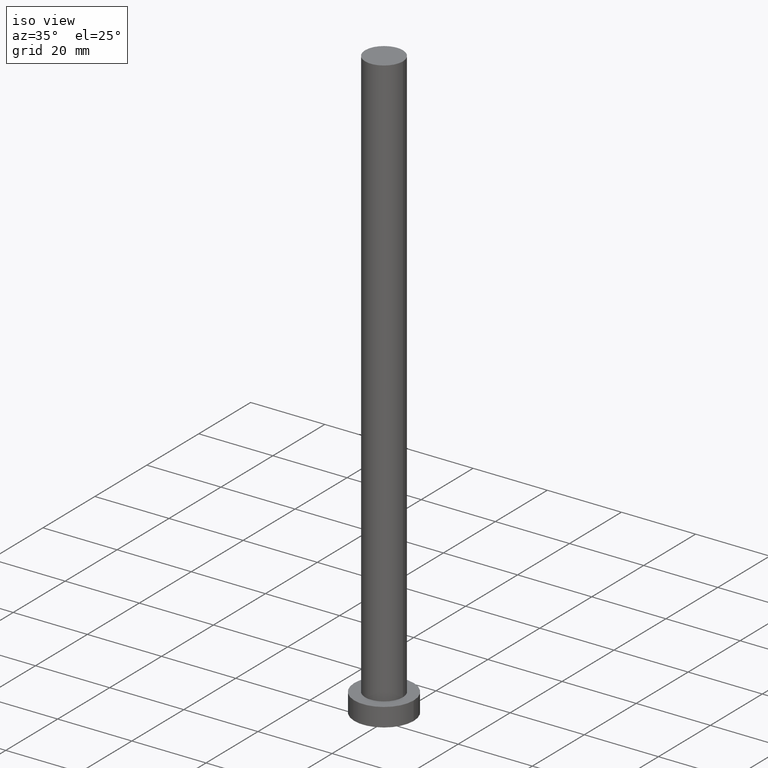
[diagram: clean part render]
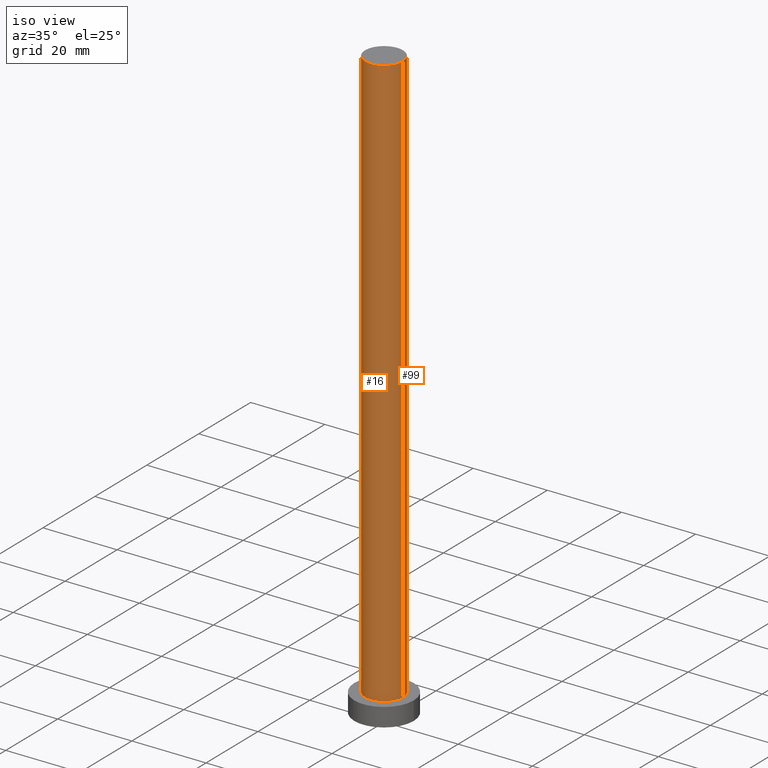
[diagram: same view with one multi-face feature highlighted, each face labeled with its STEP entity id]
A machine part, iso view. The highlighted faces form ONE feature: a constant-radius fillet chain: 2 tangent blend faces with common blend radius 5.1 mm. The faces share edges in the B-rep.
Their STEP definitions:
[1] entity #99 (Cylinder):
#8 = AXIS2_PLACEMENT_3D ( 'NONE', #113, #247, #66 ) ;
#11 = CARTESIAN_POINT ( 'NONE',  ( -5.099999999999999645, 0.000000000000000000, 160.0000000000000000 ) ) ;
#14 = DIRECTION ( 'NONE',  ( 0.000000000000000000, 0.000000000000000000, 1.000000000000000000 ) ) ;
#21 = ORIENTED_EDGE ( 'NONE', *, *, #197, .T. ) ;
#45 = VERTEX_POINT ( 'NONE', #147 ) ;
#48 = CARTESIAN_POINT ( 'NONE',  ( 5.099999999999999645, 6.245698675651500839E-16, 160.0000000000000000 ) ) ;
#61 = EDGE_LOOP ( 'NONE', ( #107, #101, #21, #142 ) ) ;
#62 = VERTEX_POINT ( 'NONE', #189 ) ;
#66 = DIRECTION ( 'NONE',  ( -1.000000000000000000, 0.000000000000000000, 0.000000000000000000 ) ) ;
#71 = DIRECTION ( 'NONE',  ( -0.000000000000000000, -0.000000000000000000, -1.000000000000000000 ) ) ;
#86 = EDGE_CURVE ( 'NONE', #145, #221, #249, .T. ) ;
#87 = CIRCLE ( 'NONE', #185, 5.099999999999999645 ) ;
#88 = CARTESIAN_POINT ( 'NONE',  ( 0.000000000000000000, 0.000000000000000000, 5.000000000000000000 ) ) ;
#99 = ADVANCED_FACE ( 'NONE', ( #165 ), #224, .T. ) ;
#101 = ORIENTED_EDGE ( 'NONE', *, *, #172, .T. ) ;
#107 = ORIENTED_EDGE ( 'NONE', *, *, #129, .F. ) ;
#112 = DIRECTION ( 'NONE',  ( 1.000000000000000000, 0.000000000000000000, 0.000000000000000000 ) ) ;
#113 = CARTESIAN_POINT ( 'NONE',  ( 0.000000000000000000, 0.000000000000000000, 160.0000000000000000 ) ) ;
#115 = CARTESIAN_POINT ( 'NONE',  ( -5.099999999999999645, 0.000000000000000000, 160.0000000000000000 ) ) ;
#124 = VECTOR ( 'NONE', #204, 1000.000000000000000 ) ;
#129 = EDGE_CURVE ( 'NONE', #45, #145, #87, .T. ) ;
#131 = CARTESIAN_POINT ( 'NONE',  ( 0.000000000000000000, 0.000000000000000000, 160.0000000000000000 ) ) ;
#132 = DIRECTION ( 'NONE',  ( 0.000000000000000000, 0.000000000000000000, 1.000000000000000000 ) ) ;
#142 = ORIENTED_EDGE ( 'NONE', *, *, #86, .F. ) ;
#145 = VERTEX_POINT ( 'NONE', #115 ) ;
#147 = CARTESIAN_POINT ( 'NONE',  ( 5.099999999999999645, 6.245698675651500839E-16, 160.0000000000000000 ) ) ;
#153 = CARTESIAN_POINT ( 'NONE',  ( -5.099999999999999645, 0.000000000000000000, 5.000000000000000000 ) ) ;
#165 = FACE_OUTER_BOUND ( 'NONE', #61, .T. ) ;
#170 = AXIS2_PLACEMENT_3D ( 'NONE', #88, #132, #112 ) ;
#172 = EDGE_CURVE ( 'NONE', #45, #62, #210, .T. ) ;
#185 = AXIS2_PLACEMENT_3D ( 'NONE', #131, #14, #205 ) ;
#189 = CARTESIAN_POINT ( 'NONE',  ( 5.099999999999999645, 6.245698675651500839E-16, 5.000000000000000000 ) ) ;
#197 = EDGE_CURVE ( 'NONE', #62, #221, #219, .T. ) ;
#204 = DIRECTION ( 'NONE',  ( -0.000000000000000000, -0.000000000000000000, -1.000000000000000000 ) ) ;
#205 = DIRECTION ( 'NONE',  ( 1.000000000000000000, 0.000000000000000000, 0.000000000000000000 ) ) ;
#210 = LINE ( 'NONE', #48, #124 ) ;
#219 = CIRCLE ( 'NONE', #170, 5.099999999999999645 ) ;
#221 = VERTEX_POINT ( 'NONE', #153 ) ;
#224 = CYLINDRICAL_SURFACE ( 'NONE', #8, 5.099999999999999645 ) ;
#229 = VECTOR ( 'NONE', #71, 1000.000000000000000 ) ;
#247 = DIRECTION ( 'NONE',  ( -0.000000000000000000, -0.000000000000000000, -1.000000000000000000 ) ) ;
#249 = LINE ( 'NONE', #11, #229 ) ;
[2] entity #16 (Cylinder):
#3 = CARTESIAN_POINT ( 'NONE',  ( 0.000000000000000000, 0.000000000000000000, 160.0000000000000000 ) ) ;
#4 = ORIENTED_EDGE ( 'NONE', *, *, #86, .T. ) ;
#11 = CARTESIAN_POINT ( 'NONE',  ( -5.099999999999999645, 0.000000000000000000, 160.0000000000000000 ) ) ;
#16 = ADVANCED_FACE ( 'NONE', ( #200 ), #102, .T. ) ;
#24 = EDGE_LOOP ( 'NONE', ( #63, #106, #4, #80 ) ) ;
#45 = VERTEX_POINT ( 'NONE', #147 ) ;
#48 = CARTESIAN_POINT ( 'NONE',  ( 5.099999999999999645, 6.245698675651500839E-16, 160.0000000000000000 ) ) ;
#50 = DIRECTION ( 'NONE',  ( 1.000000000000000000, 0.000000000000000000, 0.000000000000000000 ) ) ;
#54 = CARTESIAN_POINT ( 'NONE',  ( 0.000000000000000000, 0.000000000000000000, 5.000000000000000000 ) ) ;
#62 = VERTEX_POINT ( 'NONE', #189 ) ;
#63 = ORIENTED_EDGE ( 'NONE', *, *, #172, .F. ) ;
#65 = DIRECTION ( 'NONE',  ( -1.000000000000000000, 0.000000000000000000, 0.000000000000000000 ) ) ;
#71 = DIRECTION ( 'NONE',  ( -0.000000000000000000, -0.000000000000000000, -1.000000000000000000 ) ) ;
#74 = CIRCLE ( 'NONE', #135, 5.099999999999999645 ) ;
#80 = ORIENTED_EDGE ( 'NONE', *, *, #126, .T. ) ;
#86 = EDGE_CURVE ( 'NONE', #145, #221, #249, .T. ) ;
#89 = DIRECTION ( 'NONE',  ( 1.000000000000000000, 0.000000000000000000, 0.000000000000000000 ) ) ;
#102 = CYLINDRICAL_SURFACE ( 'NONE', #176, 5.099999999999999645 ) ;
#106 = ORIENTED_EDGE ( 'NONE', *, *, #109, .F. ) ;
#109 = EDGE_CURVE ( 'NONE', #145, #45, #74, .T. ) ;
#115 = CARTESIAN_POINT ( 'NONE',  ( -5.099999999999999645, 0.000000000000000000, 160.0000000000000000 ) ) ;
#124 = VECTOR ( 'NONE', #204, 1000.000000000000000 ) ;
#126 = EDGE_CURVE ( 'NONE', #221, #62, #179, .T. ) ;
#135 = AXIS2_PLACEMENT_3D ( 'NONE', #183, #166, #50 ) ;
#145 = VERTEX_POINT ( 'NONE', #115 ) ;
#147 = CARTESIAN_POINT ( 'NONE',  ( 5.099999999999999645, 6.245698675651500839E-16, 160.0000000000000000 ) ) ;
#153 = CARTESIAN_POINT ( 'NONE',  ( -5.099999999999999645, 0.000000000000000000, 5.000000000000000000 ) ) ;
#162 = DIRECTION ( 'NONE',  ( -0.000000000000000000, -0.000000000000000000, -1.000000000000000000 ) ) ;
#166 = DIRECTION ( 'NONE',  ( 0.000000000000000000, 0.000000000000000000, 1.000000000000000000 ) ) ;
#172 = EDGE_CURVE ( 'NONE', #45, #62, #210, .T. ) ;
#176 = AXIS2_PLACEMENT_3D ( 'NONE', #3, #162, #65 ) ;
#179 = CIRCLE ( 'NONE', #226, 5.099999999999999645 ) ;
#183 = CARTESIAN_POINT ( 'NONE',  ( 0.000000000000000000, 0.000000000000000000, 160.0000000000000000 ) ) ;
#189 = CARTESIAN_POINT ( 'NONE',  ( 5.099999999999999645, 6.245698675651500839E-16, 5.000000000000000000 ) ) ;
#200 = FACE_OUTER_BOUND ( 'NONE', #24, .T. ) ;
#204 = DIRECTION ( 'NONE',  ( -0.000000000000000000, -0.000000000000000000, -1.000000000000000000 ) ) ;
#210 = LINE ( 'NONE', #48, #124 ) ;
#211 = DIRECTION ( 'NONE',  ( 0.000000000000000000, 0.000000000000000000, 1.000000000000000000 ) ) ;
#221 = VERTEX_POINT ( 'NONE', #153 ) ;
#226 = AXIS2_PLACEMENT_3D ( 'NONE', #54, #211, #89 ) ;
#229 = VECTOR ( 'NONE', #71, 1000.000000000000000 ) ;
#249 = LINE ( 'NONE', #11, #229 ) ;